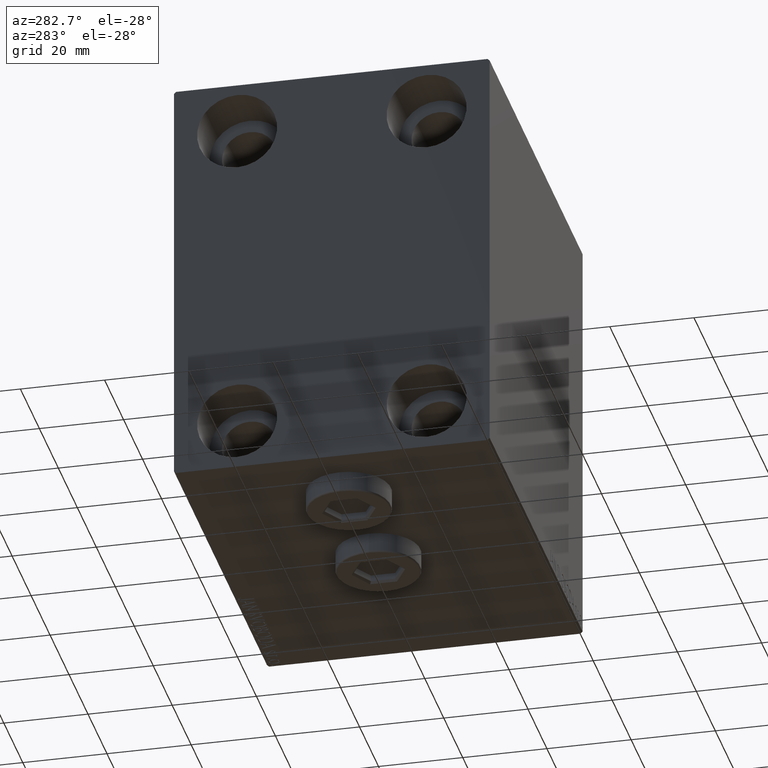
[diagram: clean part render]
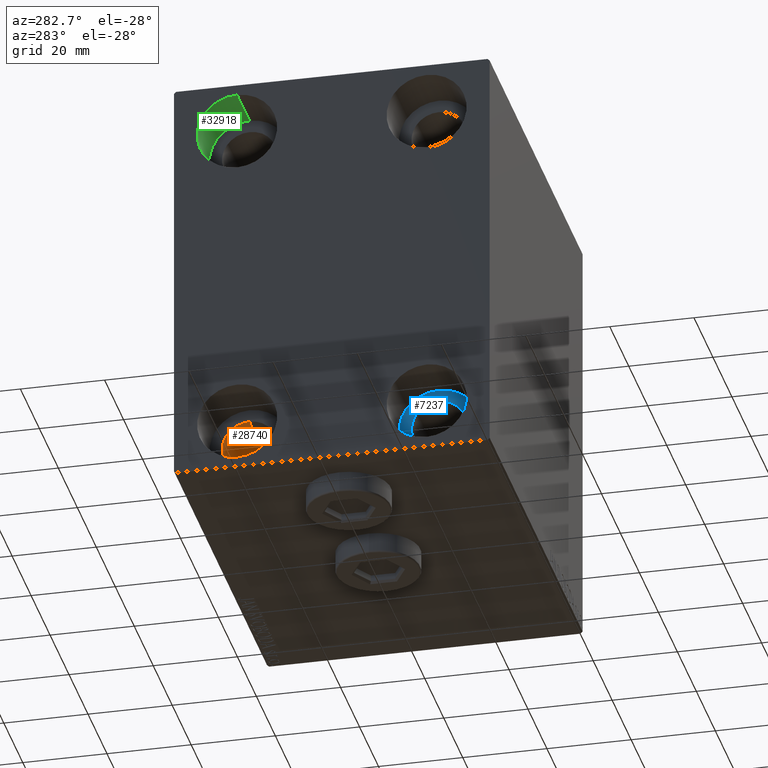
[diagram: same view with three faces highlighted in distinct colors, each labeled with its STEP entity id]
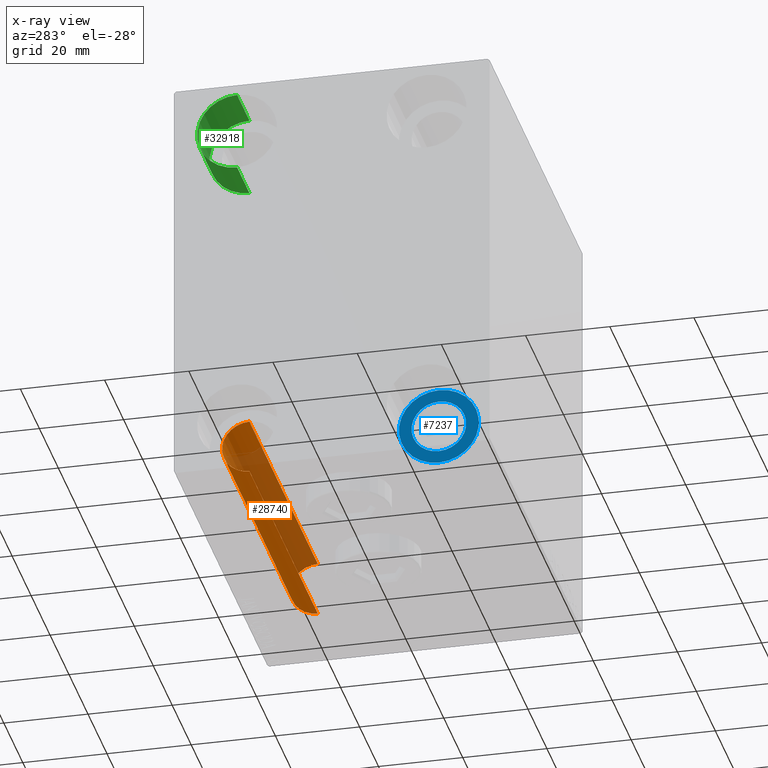
[diagram: x-ray of the same camera — body ghosted, the three highlighted faces saturated]
A machine part, auxiliary view with three faces highlighted in distinct colors.
The next image is the same camera in x-ray (body ghosted, the three faces saturated) — at least one of them is partly hidden behind the body in this view.
Their STEP definitions:

[orange] entity #28740 — the highlighted cylindrical surface (edge-blend (fillet) strip) has radius 6.5 mm, axis along (1, -0, 0).
#2383 = LINE ( 'NONE', #37689, #32544 ) ;
#4025 = CIRCLE ( 'NONE', #30744, 6.499999999999999112 ) ;
#4792 = VERTEX_POINT ( 'NONE', #22119 ) ;
#5296 = AXIS2_PLACEMENT_3D ( 'NONE', #37740, #37974, #30772 ) ;
#11378 = VERTEX_POINT ( 'NONE', #25767 ) ;
#12954 = DIRECTION ( 'NONE',  ( -1.000000000000000000, 0.000000000000000000, 0.000000000000000000 ) ) ;
#16535 = DIRECTION ( 'NONE',  ( -1.000000000000000000, -0.000000000000000000, -0.000000000000000000 ) ) ;
#16936 = CARTESIAN_POINT ( 'NONE',  ( 98.00000000000000000, 22.49999999999999645, 31.49999999999999289 ) ) ;
#17914 = EDGE_CURVE ( 'NONE', #11378, #32252, #2383, .T. ) ;
#20114 = CIRCLE ( 'NONE', #40946, 6.499999999999999112 ) ;
#22119 = CARTESIAN_POINT ( 'NONE',  ( 12.99999999999999822, 22.49999999999999645, 31.49999999999999289 ) ) ;
#22367 = ORIENTED_EDGE ( 'NONE', *, *, #17914, .T. ) ;
#23867 = CARTESIAN_POINT ( 'NONE',  ( 12.99999999999999822, 22.49999999999999645, 37.99999999999999289 ) ) ;
#25487 = ORIENTED_EDGE ( 'NONE', *, *, #30462, .T. ) ;
#25767 = CARTESIAN_POINT ( 'NONE',  ( 85.00000000000000000, 22.49999999999999645, 44.49999999999999289 ) ) ;
#27979 = CYLINDRICAL_SURFACE ( 'NONE', #5296, 6.499999999999999112 ) ;
#28740 = ADVANCED_FACE ( 'NONE', ( #34025 ), #27979, .F. ) ;
#29529 = VECTOR ( 'NONE', #37860, 1000.000000000000000 ) ;
#30066 = CARTESIAN_POINT ( 'NONE',  ( 85.00000000000000000, 22.49999999999999645, 31.49999999999999289 ) ) ;
#30462 = EDGE_CURVE ( 'NONE', #32252, #4792, #20114, .T. ) ;
#30744 = AXIS2_PLACEMENT_3D ( 'NONE', #42607, #36530, #39777 ) ;
#30772 = DIRECTION ( 'NONE',  ( 0.000000000000000000, 0.000000000000000000, 1.000000000000000000 ) ) ;
#31755 = VERTEX_POINT ( 'NONE', #30066 ) ;
#32252 = VERTEX_POINT ( 'NONE', #43229 ) ;
#32544 = VECTOR ( 'NONE', #16535, 1000.000000000000000 ) ;
#33521 = EDGE_LOOP ( 'NONE', ( #43085, #38186, #22367, #25487 ) ) ;
#34025 = FACE_OUTER_BOUND ( 'NONE', #33521, .T. ) ;
#36530 = DIRECTION ( 'NONE',  ( -1.000000000000000000, -0.000000000000000000, -0.000000000000000000 ) ) ;
#36846 = EDGE_CURVE ( 'NONE', #11378, #31755, #4025, .T. ) ;
#37364 = DIRECTION ( 'NONE',  ( 0.000000000000000000, 0.000000000000000000, 1.000000000000000000 ) ) ;
#37689 = CARTESIAN_POINT ( 'NONE',  ( 98.00000000000000000, 22.49999999999999645, 44.49999999999999289 ) ) ;
#37740 = CARTESIAN_POINT ( 'NONE',  ( 98.00000000000000000, 22.49999999999999645, 37.99999999999999289 ) ) ;
#37860 = DIRECTION ( 'NONE',  ( -1.000000000000000000, -0.000000000000000000, -0.000000000000000000 ) ) ;
#37974 = DIRECTION ( 'NONE',  ( -1.000000000000000000, -0.000000000000000000, -0.000000000000000000 ) ) ;
#38186 = ORIENTED_EDGE ( 'NONE', *, *, #36846, .F. ) ;
#39777 = DIRECTION ( 'NONE',  ( 0.000000000000000000, 0.000000000000000000, -1.000000000000000000 ) ) ;
#40946 = AXIS2_PLACEMENT_3D ( 'NONE', #23867, #12954, #37364 ) ;
#42152 = EDGE_CURVE ( 'NONE', #31755, #4792, #44857, .T. ) ;
#42607 = CARTESIAN_POINT ( 'NONE',  ( 85.00000000000000000, 22.49999999999999645, 37.99999999999999289 ) ) ;
#43085 = ORIENTED_EDGE ( 'NONE', *, *, #42152, .F. ) ;
#43229 = CARTESIAN_POINT ( 'NONE',  ( 12.99999999999999822, 22.49999999999999645, 44.49999999999999289 ) ) ;
#44857 = LINE ( 'NONE', #16936, #29529 ) ;

[blue] entity #7237 — the highlighted planar face has unit normal (-1, 0, 0).
#290 = FACE_OUTER_BOUND ( 'NONE', #42175, .T. ) ;
#1624 = AXIS2_PLACEMENT_3D ( 'NONE', #28680, #42881, #11012 ) ;
#1978 = CARTESIAN_POINT ( 'NONE',  ( 85.00000000000000000, -22.50000000000000355, 38.00000000000000000 ) ) ;
#4525 = ORIENTED_EDGE ( 'NONE', *, *, #17437, .T. ) ;
#4673 = VERTEX_POINT ( 'NONE', #20270 ) ;
#5332 = CIRCLE ( 'NONE', #1624, 9.500000000000001776 ) ;
#5635 = VERTEX_POINT ( 'NONE', #36297 ) ;
#7237 = ADVANCED_FACE ( 'NONE', ( #290, #35143 ), #42835, .T. ) ;
#7482 = CARTESIAN_POINT ( 'NONE',  ( 85.00000000000000000, -22.50000000000000355, 38.00000000000000000 ) ) ;
#11012 = DIRECTION ( 'NONE',  ( 0.000000000000000000, 0.000000000000000000, 1.000000000000000000 ) ) ;
#11980 = DIRECTION ( 'NONE',  ( -1.000000000000000000, -0.000000000000000000, -0.000000000000000000 ) ) ;
#12397 = AXIS2_PLACEMENT_3D ( 'NONE', #1978, #11980, #26159 ) ;
#13942 = VERTEX_POINT ( 'NONE', #37227 ) ;
#14613 = CIRCLE ( 'NONE', #12397, 6.499999999999999112 ) ;
#14984 = CARTESIAN_POINT ( 'NONE',  ( 85.00000000000000000, -22.50000000000000355, 44.50000000000000000 ) ) ;
#16702 = DIRECTION ( 'NONE',  ( 0.000000000000000000, 0.000000000000000000, -1.000000000000000000 ) ) ;
#17437 = EDGE_CURVE ( 'NONE', #21728, #13942, #31795, .T. ) ;
#20160 = EDGE_LOOP ( 'NONE', ( #4525, #24978 ) ) ;
#20270 = CARTESIAN_POINT ( 'NONE',  ( 85.00000000000000000, -22.50000000000000355, 28.49999999999999645 ) ) ;
#21650 = CIRCLE ( 'NONE', #33540, 9.500000000000001776 ) ;
#21728 = VERTEX_POINT ( 'NONE', #14984 ) ;
#23987 = DIRECTION ( 'NONE',  ( 0.000000000000000000, 0.000000000000000000, 1.000000000000000000 ) ) ;
#24680 = CARTESIAN_POINT ( 'NONE',  ( 85.00000000000000000, -22.50000000000000355, 38.00000000000000000 ) ) ;
#24978 = ORIENTED_EDGE ( 'NONE', *, *, #40139, .T. ) ;
#26159 = DIRECTION ( 'NONE',  ( 0.000000000000000000, 0.000000000000000000, -1.000000000000000000 ) ) ;
#26948 = EDGE_CURVE ( 'NONE', #4673, #5635, #5332, .T. ) ;
#27336 = AXIS2_PLACEMENT_3D ( 'NONE', #30661, #44852, #16702 ) ;
#27882 = ORIENTED_EDGE ( 'NONE', *, *, #31838, .F. ) ;
#27947 = DIRECTION ( 'NONE',  ( 0.000000000000000000, 0.000000000000000000, 1.000000000000000000 ) ) ;
#28184 = DIRECTION ( 'NONE',  ( 1.000000000000000000, 0.000000000000000000, -0.000000000000000000 ) ) ;
#28680 = CARTESIAN_POINT ( 'NONE',  ( 85.00000000000000000, -22.50000000000000355, 38.00000000000000000 ) ) ;
#30661 = CARTESIAN_POINT ( 'NONE',  ( 85.00000000000000000, -22.50000000000000355, 38.00000000000000000 ) ) ;
#31795 = CIRCLE ( 'NONE', #27336, 6.499999999999999112 ) ;
#31838 = EDGE_CURVE ( 'NONE', #5635, #4673, #21650, .T. ) ;
#33540 = AXIS2_PLACEMENT_3D ( 'NONE', #24680, #38628, #23987 ) ;
#35143 = FACE_BOUND ( 'NONE', #20160, .T. ) ;
#35450 = ORIENTED_EDGE ( 'NONE', *, *, #26948, .F. ) ;
#36297 = CARTESIAN_POINT ( 'NONE',  ( 85.00000000000000000, -22.50000000000000355, 47.50000000000000000 ) ) ;
#37227 = CARTESIAN_POINT ( 'NONE',  ( 85.00000000000000000, -22.50000000000000355, 31.50000000000000000 ) ) ;
#38628 = DIRECTION ( 'NONE',  ( -1.000000000000000000, -0.000000000000000000, -0.000000000000000000 ) ) ;
#39750 = AXIS2_PLACEMENT_3D ( 'NONE', #7482, #28184, #27947 ) ;
#40139 = EDGE_CURVE ( 'NONE', #13942, #21728, #14613, .T. ) ;
#42175 = EDGE_LOOP ( 'NONE', ( #35450, #27882 ) ) ;
#42835 = PLANE ( 'NONE',  #39750 ) ;
#42881 = DIRECTION ( 'NONE',  ( -1.000000000000000000, -0.000000000000000000, -0.000000000000000000 ) ) ;
#44852 = DIRECTION ( 'NONE',  ( -1.000000000000000000, -0.000000000000000000, -0.000000000000000000 ) ) ;

[green] entity #32918 — the highlighted cylindrical surface (partial cylindrical patch) has radius 9.5 mm, axis along (-1, 0, 0).
#13 = CARTESIAN_POINT ( 'NONE',  ( 85.00000000000000000, 22.49999999999999289, -38.00000000000000000 ) ) ;
#111 = EDGE_CURVE ( 'NONE', #3927, #27236, #1813, .T. ) ;
#1206 = CARTESIAN_POINT ( 'NONE',  ( 98.00000000000000000, 22.49999999999999289, -47.50000000000000000 ) ) ;
#1813 = CIRCLE ( 'NONE', #12933, 9.500000000000001776 ) ;
#3924 = DIRECTION ( 'NONE',  ( 1.000000000000000000, -0.000000000000000000, -0.000000000000000000 ) ) ;
#3927 = VERTEX_POINT ( 'NONE', #9248 ) ;
#6004 = CIRCLE ( 'NONE', #40152, 9.500000000000001776 ) ;
#6750 = DIRECTION ( 'NONE',  ( 0.000000000000000000, 0.000000000000000000, -1.000000000000000000 ) ) ;
#6998 = VERTEX_POINT ( 'NONE', #8690 ) ;
#8690 = CARTESIAN_POINT ( 'NONE',  ( 85.00000000000000000, 22.49999999999999289, -47.50000000000000000 ) ) ;
#9223 = DIRECTION ( 'NONE',  ( 0.000000000000000000, 0.000000000000000000, 1.000000000000000000 ) ) ;
#9248 = CARTESIAN_POINT ( 'NONE',  ( 98.00000000000000000, 22.49999999999999289, -28.49999999999999645 ) ) ;
#9811 = AXIS2_PLACEMENT_3D ( 'NONE', #13, #27892, #6750 ) ;
#10179 = LINE ( 'NONE', #17849, #38326 ) ;
#11275 = ORIENTED_EDGE ( 'NONE', *, *, #45540, .F. ) ;
#12933 = AXIS2_PLACEMENT_3D ( 'NONE', #17109, #27580, #9223 ) ;
#13714 = CYLINDRICAL_SURFACE ( 'NONE', #9811, 9.500000000000001776 ) ;
#17109 = CARTESIAN_POINT ( 'NONE',  ( 98.00000000000000000, 22.49999999999999289, -38.00000000000000000 ) ) ;
#17733 = VECTOR ( 'NONE', #37781, 1000.000000000000000 ) ;
#17849 = CARTESIAN_POINT ( 'NONE',  ( 85.00000000000000000, 22.49999999999999289, -47.50000000000000000 ) ) ;
#18362 = EDGE_LOOP ( 'NONE', ( #11275, #35780, #45992, #26738 ) ) ;
#23470 = CARTESIAN_POINT ( 'NONE',  ( 85.00000000000000000, 22.49999999999999289, -28.49999999999999645 ) ) ;
#23542 = VERTEX_POINT ( 'NONE', #23470 ) ;
#24896 = DIRECTION ( 'NONE',  ( -1.000000000000000000, -0.000000000000000000, -0.000000000000000000 ) ) ;
#26738 = ORIENTED_EDGE ( 'NONE', *, *, #111, .F. ) ;
#27236 = VERTEX_POINT ( 'NONE', #1206 ) ;
#27326 = LINE ( 'NONE', #34298, #17733 ) ;
#27580 = DIRECTION ( 'NONE',  ( -1.000000000000000000, -0.000000000000000000, -0.000000000000000000 ) ) ;
#27892 = DIRECTION ( 'NONE',  ( 1.000000000000000000, -0.000000000000000000, -0.000000000000000000 ) ) ;
#29122 = EDGE_CURVE ( 'NONE', #23542, #6998, #6004, .T. ) ;
#31844 = FACE_OUTER_BOUND ( 'NONE', #18362, .T. ) ;
#32918 = ADVANCED_FACE ( 'NONE', ( #31844 ), #13714, .F. ) ;
#34298 = CARTESIAN_POINT ( 'NONE',  ( 85.00000000000000000, 22.49999999999999289, -28.49999999999999645 ) ) ;
#35780 = ORIENTED_EDGE ( 'NONE', *, *, #29122, .T. ) ;
#37781 = DIRECTION ( 'NONE',  ( 1.000000000000000000, -0.000000000000000000, -0.000000000000000000 ) ) ;
#38309 = EDGE_CURVE ( 'NONE', #6998, #27236, #10179, .T. ) ;
#38326 = VECTOR ( 'NONE', #3924, 1000.000000000000000 ) ;
#39074 = DIRECTION ( 'NONE',  ( 0.000000000000000000, 0.000000000000000000, 1.000000000000000000 ) ) ;
#40152 = AXIS2_PLACEMENT_3D ( 'NONE', #42584, #24896, #39074 ) ;
#42584 = CARTESIAN_POINT ( 'NONE',  ( 85.00000000000000000, 22.49999999999999289, -38.00000000000000000 ) ) ;
#45540 = EDGE_CURVE ( 'NONE', #23542, #3927, #27326, .T. ) ;
#45992 = ORIENTED_EDGE ( 'NONE', *, *, #38309, .T. ) ;